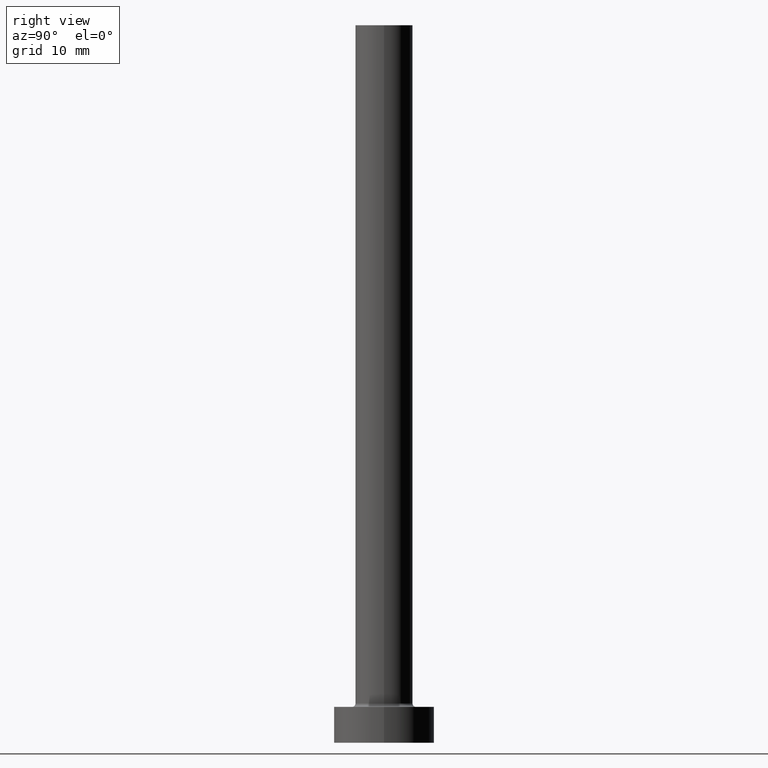
[diagram: clean part render]
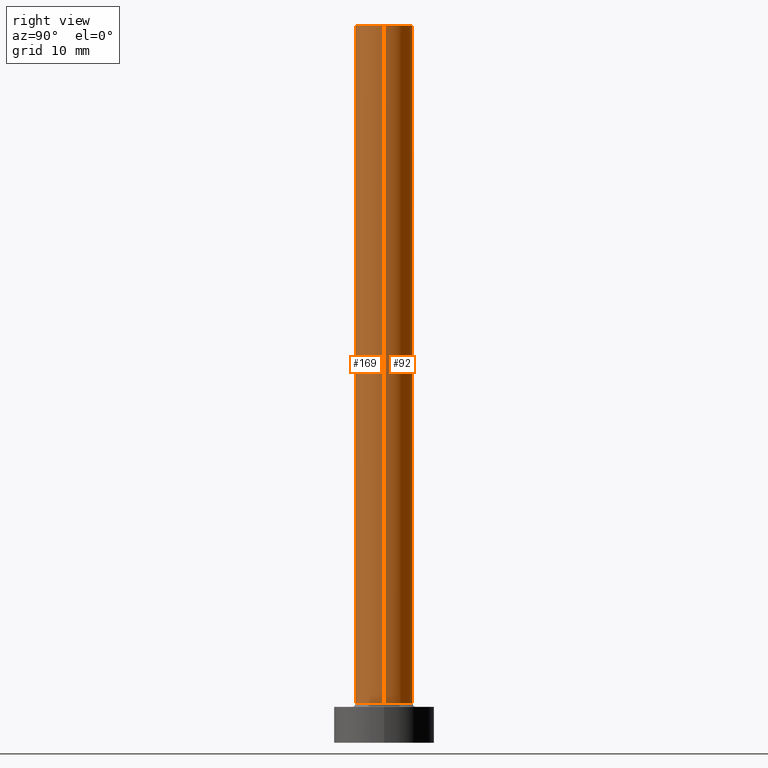
[diagram: same view with one multi-face feature highlighted, each face labeled with its STEP entity id]
A machine part, right view. The highlighted faces form ONE feature: a constant-radius fillet chain: 2 tangent blend faces with common blend radius 4 mm. The faces share edges in the B-rep.
Their STEP definitions:
[1] entity #92 (Cylinder):
#19 = EDGE_CURVE ( 'NONE', #401, #229, #222, .T. ) ;
#22 = DIRECTION ( 'NONE',  ( 1.000000000000000000, 0.000000000000000000, 0.000000000000000000 ) ) ;
#27 = CARTESIAN_POINT ( 'NONE',  ( 0.000000000000000000, 0.000000000000000000, 100.0000000000000000 ) ) ;
#33 = AXIS2_PLACEMENT_3D ( 'NONE', #27, #165, #377 ) ;
#61 = LINE ( 'NONE', #276, #159 ) ;
#64 = ORIENTED_EDGE ( 'NONE', *, *, #209, .T. ) ;
#77 = CARTESIAN_POINT ( 'NONE',  ( -4.000000000000000000, 0.000000000000000000, 100.0000000000000000 ) ) ;
#86 = EDGE_CURVE ( 'NONE', #456, #401, #376, .T. ) ;
#92 = ADVANCED_FACE ( 'NONE', ( #340 ), #124, .T. ) ;
#94 = CIRCLE ( 'NONE', #319, 4.000000000000000000 ) ;
#97 = DIRECTION ( 'NONE',  ( 0.000000000000000000, 0.000000000000000000, 1.000000000000000000 ) ) ;
#101 = ORIENTED_EDGE ( 'NONE', *, *, #318, .T. ) ;
#124 = CYLINDRICAL_SURFACE ( 'NONE', #33, 4.000000000000000000 ) ;
#138 = EDGE_LOOP ( 'NONE', ( #255, #101, #64, #207 ) ) ;
#159 = VECTOR ( 'NONE', #203, 1000.000000000000000 ) ;
#163 = CARTESIAN_POINT ( 'NONE',  ( 0.000000000000000000, 0.000000000000000000, 100.0000000000000000 ) ) ;
#165 = DIRECTION ( 'NONE',  ( -0.000000000000000000, -0.000000000000000000, -1.000000000000000000 ) ) ;
#203 = DIRECTION ( 'NONE',  ( -0.000000000000000000, -0.000000000000000000, -1.000000000000000000 ) ) ;
#207 = ORIENTED_EDGE ( 'NONE', *, *, #19, .F. ) ;
#209 = EDGE_CURVE ( 'NONE', #426, #229, #94, .T. ) ;
#212 = CARTESIAN_POINT ( 'NONE',  ( -4.000000000000000000, 0.000000000000000000, 5.500000000000005329 ) ) ;
#222 = LINE ( 'NONE', #77, #431 ) ;
#229 = VERTEX_POINT ( 'NONE', #212 ) ;
#255 = ORIENTED_EDGE ( 'NONE', *, *, #86, .F. ) ;
#269 = DIRECTION ( 'NONE',  ( 0.000000000000000000, 0.000000000000000000, 1.000000000000000000 ) ) ;
#274 = DIRECTION ( 'NONE',  ( 1.000000000000000000, 0.000000000000000000, 0.000000000000000000 ) ) ;
#276 = CARTESIAN_POINT ( 'NONE',  ( 4.000000000000000000, 4.898587196589412829E-16, 100.0000000000000000 ) ) ;
#294 = DIRECTION ( 'NONE',  ( -0.000000000000000000, -0.000000000000000000, -1.000000000000000000 ) ) ;
#308 = AXIS2_PLACEMENT_3D ( 'NONE', #163, #269, #22 ) ;
#318 = EDGE_CURVE ( 'NONE', #456, #426, #61, .T. ) ;
#319 = AXIS2_PLACEMENT_3D ( 'NONE', #412, #97, #274 ) ;
#340 = FACE_OUTER_BOUND ( 'NONE', #138, .T. ) ;
#371 = CARTESIAN_POINT ( 'NONE',  ( 4.000000000000000000, 4.898587196589412829E-16, 5.500000000000005329 ) ) ;
#376 = CIRCLE ( 'NONE', #308, 4.000000000000000000 ) ;
#377 = DIRECTION ( 'NONE',  ( -1.000000000000000000, 0.000000000000000000, 0.000000000000000000 ) ) ;
#398 = CARTESIAN_POINT ( 'NONE',  ( 4.000000000000000000, 4.898587196589412829E-16, 100.0000000000000000 ) ) ;
#401 = VERTEX_POINT ( 'NONE', #459 ) ;
#412 = CARTESIAN_POINT ( 'NONE',  ( 0.000000000000000000, 0.000000000000000000, 5.500000000000005329 ) ) ;
#426 = VERTEX_POINT ( 'NONE', #371 ) ;
#431 = VECTOR ( 'NONE', #294, 1000.000000000000000 ) ;
#456 = VERTEX_POINT ( 'NONE', #398 ) ;
#459 = CARTESIAN_POINT ( 'NONE',  ( -4.000000000000000000, 0.000000000000000000, 100.0000000000000000 ) ) ;
[2] entity #169 (Cylinder):
#12 = EDGE_CURVE ( 'NONE', #229, #426, #82, .T. ) ;
#19 = EDGE_CURVE ( 'NONE', #401, #229, #222, .T. ) ;
#25 = CYLINDRICAL_SURFACE ( 'NONE', #225, 4.000000000000000000 ) ;
#54 = DIRECTION ( 'NONE',  ( -0.000000000000000000, -0.000000000000000000, -1.000000000000000000 ) ) ;
#61 = LINE ( 'NONE', #276, #159 ) ;
#77 = CARTESIAN_POINT ( 'NONE',  ( -4.000000000000000000, 0.000000000000000000, 100.0000000000000000 ) ) ;
#82 = CIRCLE ( 'NONE', #373, 4.000000000000000000 ) ;
#89 = AXIS2_PLACEMENT_3D ( 'NONE', #326, #230, #221 ) ;
#93 = CARTESIAN_POINT ( 'NONE',  ( 0.000000000000000000, 0.000000000000000000, 100.0000000000000000 ) ) ;
#95 = CIRCLE ( 'NONE', #89, 4.000000000000000000 ) ;
#106 = EDGE_LOOP ( 'NONE', ( #136, #441, #117, #352 ) ) ;
#117 = ORIENTED_EDGE ( 'NONE', *, *, #19, .T. ) ;
#136 = ORIENTED_EDGE ( 'NONE', *, *, #318, .F. ) ;
#159 = VECTOR ( 'NONE', #203, 1000.000000000000000 ) ;
#169 = ADVANCED_FACE ( 'NONE', ( #343 ), #25, .T. ) ;
#203 = DIRECTION ( 'NONE',  ( -0.000000000000000000, -0.000000000000000000, -1.000000000000000000 ) ) ;
#212 = CARTESIAN_POINT ( 'NONE',  ( -4.000000000000000000, 0.000000000000000000, 5.500000000000005329 ) ) ;
#221 = DIRECTION ( 'NONE',  ( 1.000000000000000000, 0.000000000000000000, 0.000000000000000000 ) ) ;
#222 = LINE ( 'NONE', #77, #431 ) ;
#225 = AXIS2_PLACEMENT_3D ( 'NONE', #93, #54, #382 ) ;
#229 = VERTEX_POINT ( 'NONE', #212 ) ;
#230 = DIRECTION ( 'NONE',  ( 0.000000000000000000, 0.000000000000000000, 1.000000000000000000 ) ) ;
#276 = CARTESIAN_POINT ( 'NONE',  ( 4.000000000000000000, 4.898587196589412829E-16, 100.0000000000000000 ) ) ;
#290 = DIRECTION ( 'NONE',  ( 0.000000000000000000, 0.000000000000000000, 1.000000000000000000 ) ) ;
#294 = DIRECTION ( 'NONE',  ( -0.000000000000000000, -0.000000000000000000, -1.000000000000000000 ) ) ;
#318 = EDGE_CURVE ( 'NONE', #456, #426, #61, .T. ) ;
#326 = CARTESIAN_POINT ( 'NONE',  ( 0.000000000000000000, 0.000000000000000000, 100.0000000000000000 ) ) ;
#338 = DIRECTION ( 'NONE',  ( 1.000000000000000000, 0.000000000000000000, 0.000000000000000000 ) ) ;
#343 = FACE_OUTER_BOUND ( 'NONE', #106, .T. ) ;
#352 = ORIENTED_EDGE ( 'NONE', *, *, #12, .T. ) ;
#371 = CARTESIAN_POINT ( 'NONE',  ( 4.000000000000000000, 4.898587196589412829E-16, 5.500000000000005329 ) ) ;
#372 = CARTESIAN_POINT ( 'NONE',  ( 0.000000000000000000, 0.000000000000000000, 5.500000000000005329 ) ) ;
#373 = AXIS2_PLACEMENT_3D ( 'NONE', #372, #290, #338 ) ;
#382 = DIRECTION ( 'NONE',  ( -1.000000000000000000, 0.000000000000000000, 0.000000000000000000 ) ) ;
#398 = CARTESIAN_POINT ( 'NONE',  ( 4.000000000000000000, 4.898587196589412829E-16, 100.0000000000000000 ) ) ;
#401 = VERTEX_POINT ( 'NONE', #459 ) ;
#424 = EDGE_CURVE ( 'NONE', #401, #456, #95, .T. ) ;
#426 = VERTEX_POINT ( 'NONE', #371 ) ;
#431 = VECTOR ( 'NONE', #294, 1000.000000000000000 ) ;
#441 = ORIENTED_EDGE ( 'NONE', *, *, #424, .F. ) ;
#456 = VERTEX_POINT ( 'NONE', #398 ) ;
#459 = CARTESIAN_POINT ( 'NONE',  ( -4.000000000000000000, 0.000000000000000000, 100.0000000000000000 ) ) ;